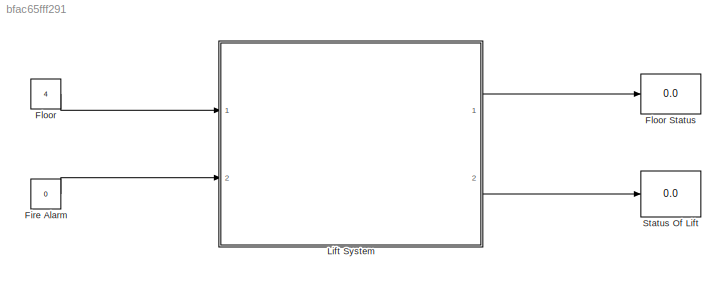
MODEL slx_bfac65fff291
KIND model
CONFIG AbsTol = auto
CONFIG EnableMultiTasking = off
CONFIG FixedStep = auto
CONFIG MaxStep = auto
CONFIG MinStep = auto
CONFIG RelTol = 1e-3
CONFIG SampleTimeConstraint = Unconstrained
CONFIG SolverName = VariableStepAuto
CONFIG StartTime = 0.0
CONFIG StopTime = inf
BLOCK [Constant] Fire Alarm
  Value = 0
BLOCK [Constant] Floor
  Value = 4
BLOCK [Display] Floor Status
  Decimation = 1
  Ports = [1]
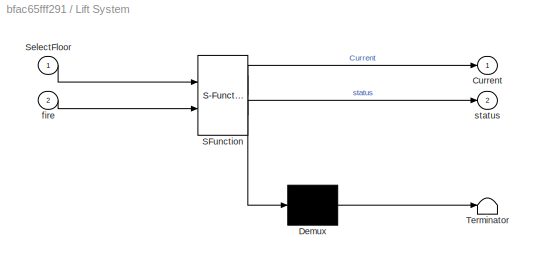
BLOCK [SubSystem] Lift System
  ErrorFcn = Stateflow.Translate.translate
  PermitHierarchicalResolution = ExplicitOnly
  Ports = [2, 2]
  RequestExecContextInheritance = off
  SFBlockType = Chart
  TreatAsAtomicUnit = on
BLOCK [Demux] Lift System/ Demux 
  Outputs = 1
  Ports = [1, 1]
BLOCK [S-Function] Lift System/ SFunction 
  EnableBusSupport = on
  FunctionName = sf_sfun
  PortCounts = [2 3]
  Ports = [2, 3]
  SFcnIsStateOwnerBlock = off
  SFunctionDeploymentMode = off
  Tag = Stateflow S-Function 3
BLOCK [Terminator] Lift System/ Terminator 
BLOCK [Outport] Lift System/Current
BLOCK [Inport] Lift System/SelectFloor
BLOCK [Inport] Lift System/fire
  Port = 2
BLOCK [Outport] Lift System/status
  Port = 2
BLOCK [Display] Status Of Lift
  Decimation = 1
  Ports = [1]
LINE Fire Alarm:1 -> Lift System:2
LINE Floor:1 -> Lift System:1
LINE Lift System:1 -> Floor Status:1
LINE Lift System:2 -> Status Of Lift:1
CHART Lift System states=11 transitions=31
  STATE_LABEL 'LiftOperation\nentry:\nstatus=0;'
  STATE_LABEL 'LiftOn\n'
  STATE_LABEL 'GroundFloor\nentry:\nstatus=1;\nduring:\nCurrent=0;\nCheckFloor(Current);\nexit:\nstatus=0;\n'
  STATE_LABEL 'FirstFloor\nentry:\nstatus=1;\nduring:\nCurrent=1;\nCheckFloor(Current);\nexit:\nstatus=0;'
  STATE_LABEL 'SecondFloor\nentry:\nstatus=1;\nduring:\nCurrent=2;\nCheckFloor(Current);\nexit:\nstatus=0;\n'
  STATE_LABEL 'ThirdFloor\nentry:\nstatus=1;\nduring:\nCurrent=3;\nCheckFloor(Current);\nexit:\nstatus=0;\n'
  STATE_LABEL 'FourthFloor\nentry:\nstatus=1\nduring:\nCurrent=4;\nCheckFloor(Current);\nexit:\nstatus=0;'
  STATE_LABEL 'FifthFloor\nentry:\nstatus=1;\nduring:\nCurrent=5;\nCheckFloor(Current);\nexit:\nstatus=0;\n'
  STATE_LABEL 'up'
  STATE_LABEL 'down'
  STATE_LABEL 'up'
  STATE_LABEL 'down'
  STATE_LABEL 'up'
  STATE_LABEL 'down'
  STATE_LABEL 'up'
  STATE_LABEL 'down'
  STATE_LABEL 'up'
  STATE_LABEL 'down'
  STATE_LABEL 'LiftOff\nen:\nstatus=0;\nalarmStatus==0;'
  STATE_LABEL '[fire==0]'
  STATE_LABEL '[fire==1]'
  STATE_LABEL 'LiftOn\n'
  STATE_LABEL 'GroundFloor\nentry:\nstatus=1;\nduring:\nCurrent=0;\nCheckFloor(Current);\nexit:\nstatus=0;\n'
  STATE_LABEL 'FirstFloor\nentry:\nstatus=1;\nduring:\nCurrent=1;\nCheckFloor(Current);\nexit:\nstatus=0;'
  STATE_LABEL 'SecondFloor\nentry:\nstatus=1;\nduring:\nCurrent=2;\nCheckFloor(Current);\nexit:\nstatus=0;\n'
  STATE_LABEL 'ThirdFloor\nentry:\nstatus=1;\nduring:\nCurrent=3;\nCheckFloor(Current);\nexit:\nstatus=0;\n'
  STATE_LABEL 'FourthFloor\nentry:\nstatus=1\nduring:\nCurrent=4;\nCheckFloor(Current);\nexit:\nstatus=0;'
  STATE_LABEL 'FifthFloor\nentry:\nstatus=1;\nduring:\nCurrent=5;\nCheckFloor(Current);\nexit:\nstatus=0;\n'
  STATE_LABEL 'up'
  STATE_LABEL 'down'
  STATE_LABEL 'up'
  STATE_LABEL 'down'
  STATE_LABEL 'up'
  STATE_LABEL 'down'
  STATE_LABEL 'up'
  STATE_LABEL 'down'
  STATE_LABEL 'up'
  STATE_LABEL 'down'
  STATE_LABEL 'GroundFloor\nentry:\nstatus=1;\nduring:\nCurrent=0;\nCheckFloor(Current);\nexit:\nstatus=0;\n'
  STATE_LABEL 'FirstFloor\nentry:\nstatus=1;\nduring:\nCurrent=1;\nCheckFloor(Current);\nexit:\nstatus=0;'
CHART  states=0 transitions=0
